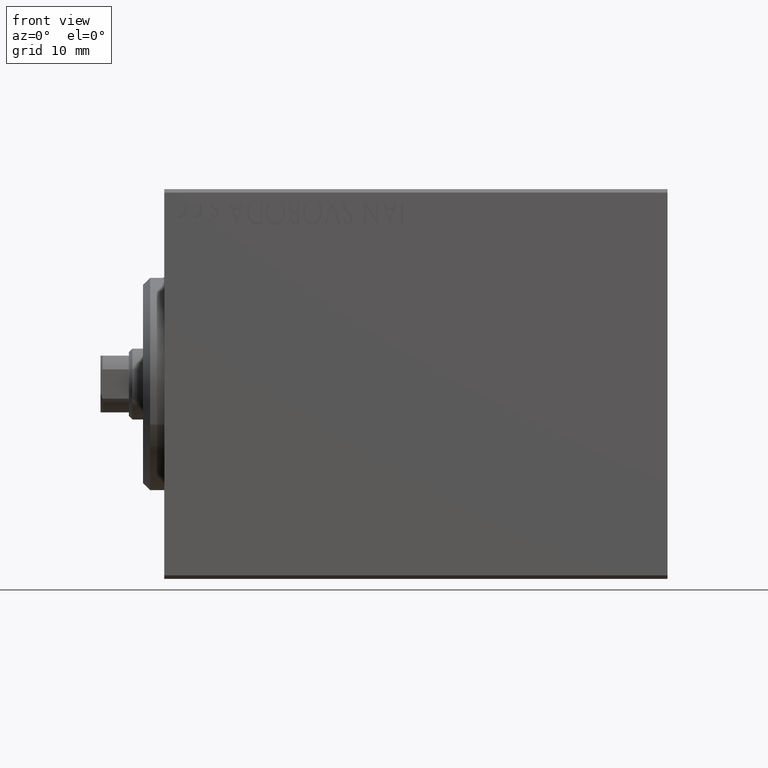
[diagram: clean part render]
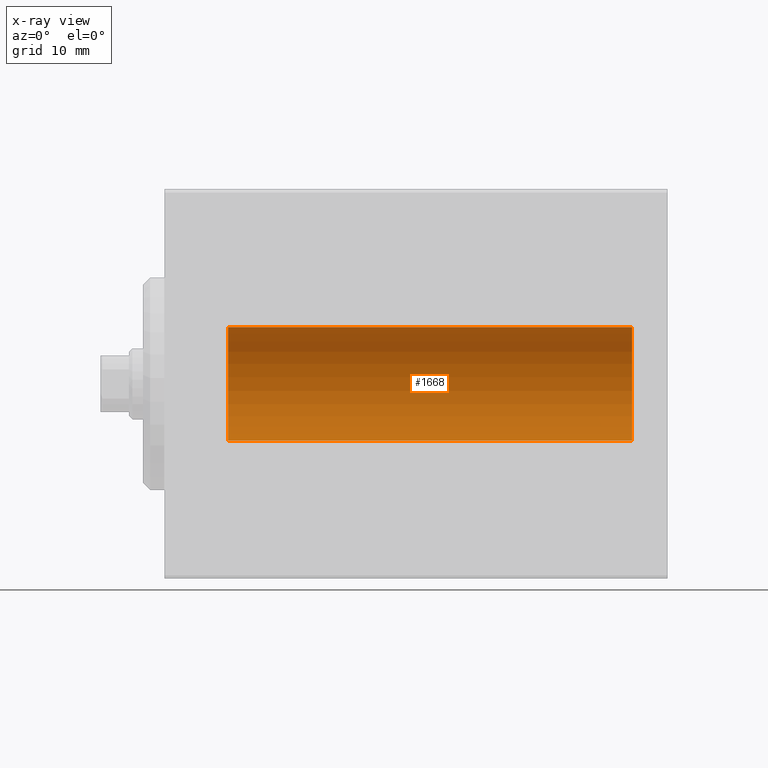
[diagram: x-ray — body ghosted, one internal face saturated and labeled with its STEP entity id]
A machine part, front view, then the same camera in x-ray: the body is ghosted and one INTERNAL B-rep face — a face not visible from any outside direction — is saturated and labeled: STEP entity #1668.
In plain terms, the highlighted cylindrical surface (partial cylindrical patch) has radius 8 mm, axis along (-1, -0, -0).
Its self-contained STEP definition (entity closure, byte-faithful):
#1040 = CIRCLE ( 'NONE', #40737, 7.999999999999998224 ) ;
#1668 = ADVANCED_FACE ( 'NONE', ( #20732 ), #13838, .F. ) ;
#2255 = CARTESIAN_POINT ( 'NONE',  ( 9.000000000000001776, 0.000000000000000000, 0.000000000000000000 ) ) ;
#3376 = AXIS2_PLACEMENT_3D ( 'NONE', #5978, #5538, #28853 ) ;
#3433 = DIRECTION ( 'NONE',  ( -1.000000000000000000, -0.000000000000000000, -0.000000000000000000 ) ) ;
#5363 = DIRECTION ( 'NONE',  ( 0.000000000000000000, 0.000000000000000000, 1.000000000000000000 ) ) ;
#5538 = DIRECTION ( 'NONE',  ( -1.000000000000000000, -0.000000000000000000, -0.000000000000000000 ) ) ;
#5962 = DIRECTION ( 'NONE',  ( -1.000000000000000000, -0.000000000000000000, -0.000000000000000000 ) ) ;
#5978 = CARTESIAN_POINT ( 'NONE',  ( 66.00000000000000000, 0.000000000000000000, 0.000000000000000000 ) ) ;
#7222 = VECTOR ( 'NONE', #5962, 1000.000000000000000 ) ;
#7298 = EDGE_CURVE ( 'NONE', #43256, #14455, #34069, .T. ) ;
#11448 = VERTEX_POINT ( 'NONE', #13372 ) ;
#13372 = CARTESIAN_POINT ( 'NONE',  ( 9.000000000000001776, 9.797174393178823685E-16, -7.999999999999998224 ) ) ;
#13838 = CYLINDRICAL_SURFACE ( 'NONE', #3376, 7.999999999999998224 ) ;
#14455 = VERTEX_POINT ( 'NONE', #29160 ) ;
#14996 = CIRCLE ( 'NONE', #16425, 7.999999999999998224 ) ;
#15473 = ORIENTED_EDGE ( 'NONE', *, *, #30150, .F. ) ;
#16425 = AXIS2_PLACEMENT_3D ( 'NONE', #41611, #24744, #38286 ) ;
#16959 = VECTOR ( 'NONE', #3433, 1000.000000000000000 ) ;
#18848 = LINE ( 'NONE', #32389, #7222 ) ;
#20732 = FACE_OUTER_BOUND ( 'NONE', #40887, .T. ) ;
#24744 = DIRECTION ( 'NONE',  ( -1.000000000000000000, 0.000000000000000000, 0.000000000000000000 ) ) ;
#28853 = DIRECTION ( 'NONE',  ( 0.000000000000000000, 0.000000000000000000, 1.000000000000000000 ) ) ;
#29160 = CARTESIAN_POINT ( 'NONE',  ( 9.000000000000001776, 0.000000000000000000, 7.999999999999998224 ) ) ;
#29617 = EDGE_CURVE ( 'NONE', #32146, #11448, #18848, .T. ) ;
#30150 = EDGE_CURVE ( 'NONE', #43256, #32146, #14996, .T. ) ;
#32146 = VERTEX_POINT ( 'NONE', #35603 ) ;
#32389 = CARTESIAN_POINT ( 'NONE',  ( 66.00000000000000000, 9.797174393178823685E-16, -7.999999999999998224 ) ) ;
#33336 = ORIENTED_EDGE ( 'NONE', *, *, #7298, .T. ) ;
#34069 = LINE ( 'NONE', #40938, #16959 ) ;
#35603 = CARTESIAN_POINT ( 'NONE',  ( 66.00000000000000000, 9.797174393178823685E-16, -7.999999999999998224 ) ) ;
#36211 = DIRECTION ( 'NONE',  ( -1.000000000000000000, 0.000000000000000000, 0.000000000000000000 ) ) ;
#38286 = DIRECTION ( 'NONE',  ( 0.000000000000000000, 0.000000000000000000, 1.000000000000000000 ) ) ;
#38494 = ORIENTED_EDGE ( 'NONE', *, *, #29617, .F. ) ;
#38800 = EDGE_CURVE ( 'NONE', #14455, #11448, #1040, .T. ) ;
#39458 = CARTESIAN_POINT ( 'NONE',  ( 66.00000000000000000, 0.000000000000000000, 7.999999999999998224 ) ) ;
#40737 = AXIS2_PLACEMENT_3D ( 'NONE', #2255, #36211, #5363 ) ;
#40887 = EDGE_LOOP ( 'NONE', ( #38494, #15473, #33336, #41682 ) ) ;
#40938 = CARTESIAN_POINT ( 'NONE',  ( 66.00000000000000000, 0.000000000000000000, 7.999999999999998224 ) ) ;
#41611 = CARTESIAN_POINT ( 'NONE',  ( 66.00000000000000000, 0.000000000000000000, 0.000000000000000000 ) ) ;
#41682 = ORIENTED_EDGE ( 'NONE', *, *, #38800, .T. ) ;
#43256 = VERTEX_POINT ( 'NONE', #39458 ) ;